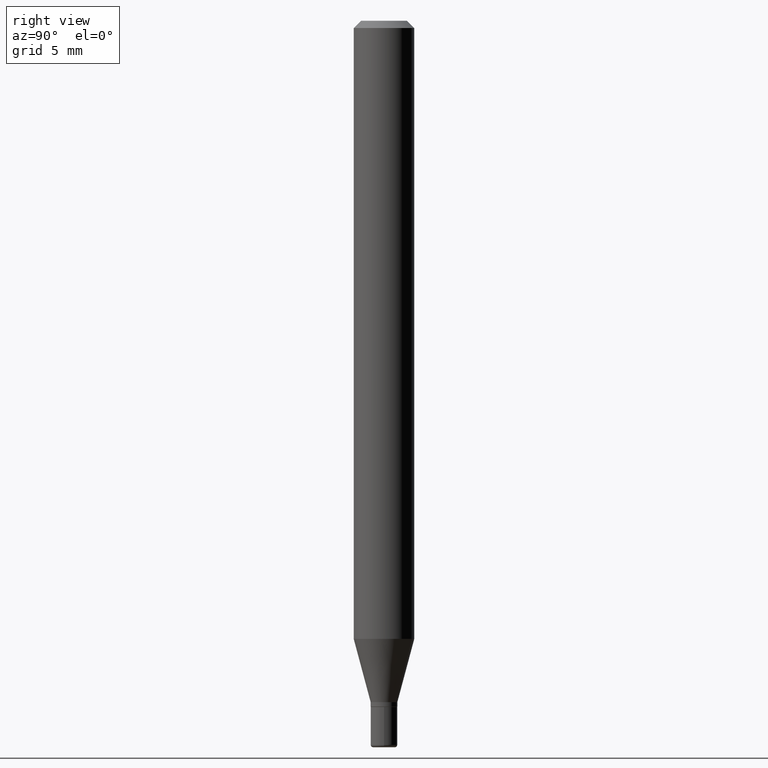
[diagram: clean part render]
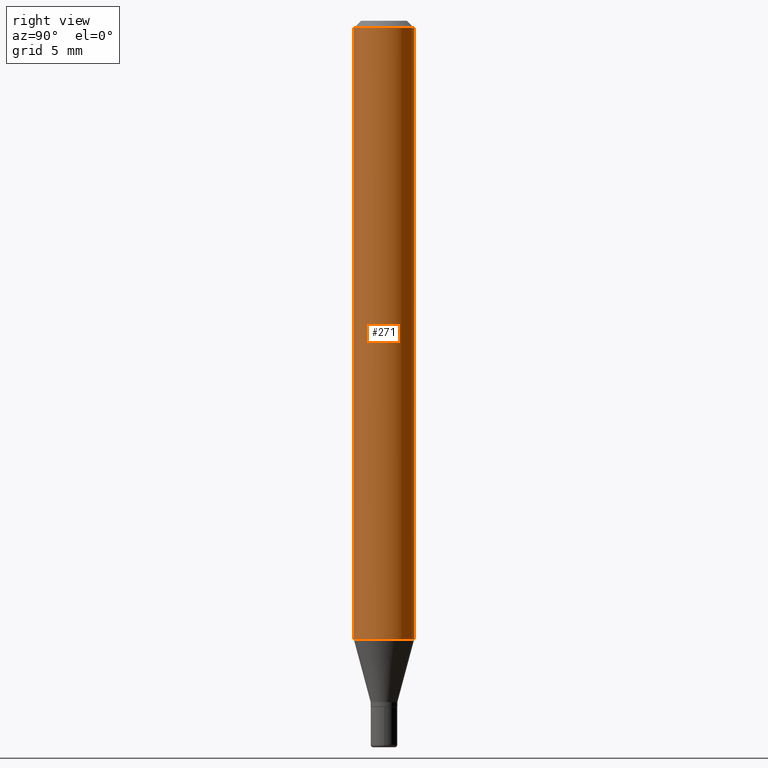
[diagram: same view with one face highlighted and labeled with its STEP entity id]
A machine part, right view. The second image highlights one B-rep face of the part: STEP entity #271.
In plain terms, the highlighted cylindrical surface (edge-blend (fillet) strip) has radius 1.5875 mm, axis along (-0, 0, 1).
Its self-contained STEP definition (entity closure, byte-faithful):
#5 = DIRECTION ( 'NONE',  ( -2.445430594000756604E-29, 3.491536060866079986E-15, 1.000000000000000000 ) ) ;
#8 = AXIS2_PLACEMENT_3D ( 'NONE', #201, #5, #164 ) ;
#24 = VECTOR ( 'NONE', #337, 39.37007874015748143 ) ;
#42 = CARTESIAN_POINT ( 'NONE',  ( -4.364351673553605587E-16, -0.06250000000000449640, -1.276378221735089857 ) ) ;
#50 = EDGE_LOOP ( 'NONE', ( #287, #405, #484, #285 ) ) ;
#76 = LINE ( 'NONE', #511, #24 ) ;
#80 = DIRECTION ( 'NONE',  ( -6.982962677686265922E-15, -1.000000000000000000, 4.370956789862821150E-15 ) ) ;
#92 = EDGE_CURVE ( 'NONE', #210, #300, #409, .T. ) ;
#112 = CARTESIAN_POINT ( 'NONE',  ( 3.121294352947271475E-29, -4.456520588492188599E-15, -1.276378221735090079 ) ) ;
#133 = VERTEX_POINT ( 'NONE', #395 ) ;
#148 = DIRECTION ( 'NONE',  ( -6.982962677686265922E-15, -1.000000000000000000, 3.491536060866079986E-15 ) ) ;
#164 = DIRECTION ( 'NONE',  ( -6.982962677686265922E-15, -1.000000000000000000, 3.483106191921935554E-15 ) ) ;
#175 = CARTESIAN_POINT ( 'NONE',  ( 4.440892098500935790E-16, 0.06249999999999551747, -1.276378221735090301 ) ) ;
#193 = CARTESIAN_POINT ( 'NONE',  ( 4.440892098500625669E-16, 0.06250000000000000000, -2.182210038041299992E-16 ) ) ;
#201 = CARTESIAN_POINT ( 'NONE',  ( 3.668145891001062423E-31, -5.237304091299016762E-17, -0.01499999999999970281 ) ) ;
#210 = VERTEX_POINT ( 'NONE', #42 ) ;
#222 = DIRECTION ( 'NONE',  ( -2.445430594000756604E-29, 3.491536060866079986E-15, 1.000000000000000000 ) ) ;
#254 = FACE_OUTER_BOUND ( 'NONE', #50, .T. ) ;
#271 = ADVANCED_FACE ( 'NONE', ( #254 ), #495, .T. ) ;
#285 = ORIENTED_EDGE ( 'NONE', *, *, #455, .F. ) ;
#287 = ORIENTED_EDGE ( 'NONE', *, *, #92, .T. ) ;
#296 = CARTESIAN_POINT ( 'NONE',  ( 0.000000000000000000, 0.000000000000000000, 0.000000000000000000 ) ) ;
#300 = VERTEX_POINT ( 'NONE', #175 ) ;
#303 = AXIS2_PLACEMENT_3D ( 'NONE', #112, #387, #80 ) ;
#319 = CIRCLE ( 'NONE', #8, 0.06250000000000000000 ) ;
#324 = VERTEX_POINT ( 'NONE', #348 ) ;
#337 = DIRECTION ( 'NONE',  ( -2.445430594000756604E-29, 3.491536060866079986E-15, 1.000000000000000000 ) ) ;
#348 = CARTESIAN_POINT ( 'NONE',  ( 4.440892098500940720E-16, 0.06249999999999995143, -0.01499999999999992138 ) ) ;
#387 = DIRECTION ( 'NONE',  ( -2.445430594000756604E-29, 3.491536060866079986E-15, 1.000000000000000000 ) ) ;
#393 = EDGE_CURVE ( 'NONE', #300, #324, #471, .T. ) ;
#395 = CARTESIAN_POINT ( 'NONE',  ( -4.364351673553912750E-16, -0.06250000000000005551, -0.01499999999999948597 ) ) ;
#405 = ORIENTED_EDGE ( 'NONE', *, *, #393, .T. ) ;
#409 = CIRCLE ( 'NONE', #303, 0.06250000000000000000 ) ;
#455 = EDGE_CURVE ( 'NONE', #210, #133, #76, .T. ) ;
#469 = DIRECTION ( 'NONE',  ( -2.445430594000756604E-29, 3.491536060866079986E-15, 1.000000000000000000 ) ) ;
#471 = LINE ( 'NONE', #193, #513 ) ;
#484 = ORIENTED_EDGE ( 'NONE', *, *, #496, .F. ) ;
#495 = CYLINDRICAL_SURFACE ( 'NONE', #497, 0.06250000000000000000 ) ;
#496 = EDGE_CURVE ( 'NONE', #133, #324, #319, .T. ) ;
#497 = AXIS2_PLACEMENT_3D ( 'NONE', #296, #222, #148 ) ;
#511 = CARTESIAN_POINT ( 'NONE',  ( -4.364351673553916201E-16, -0.06250000000000000000, 2.182210038041299992E-16 ) ) ;
#513 = VECTOR ( 'NONE', #469, 39.37007874015748143 ) ;